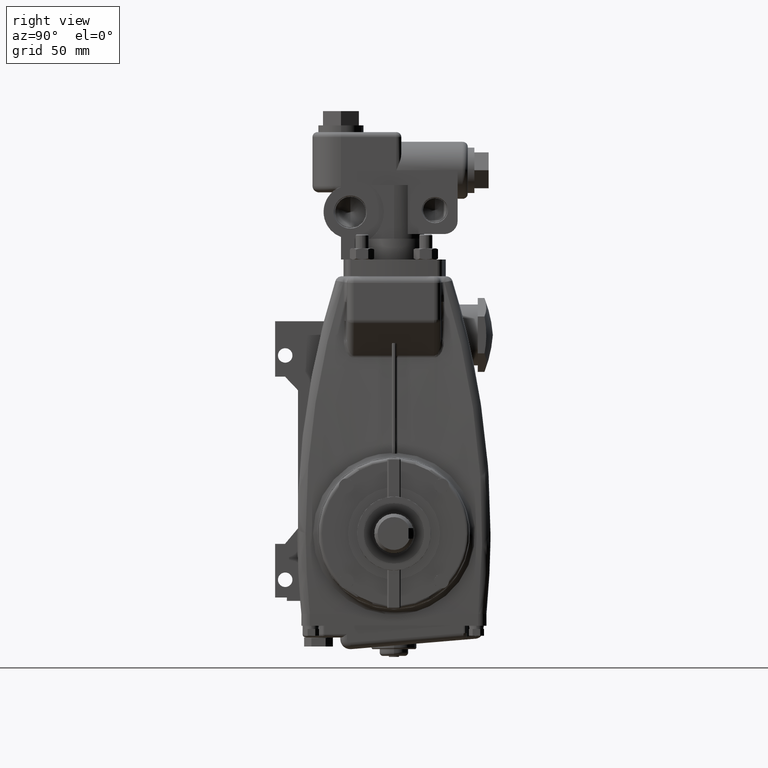
[diagram: clean part render]
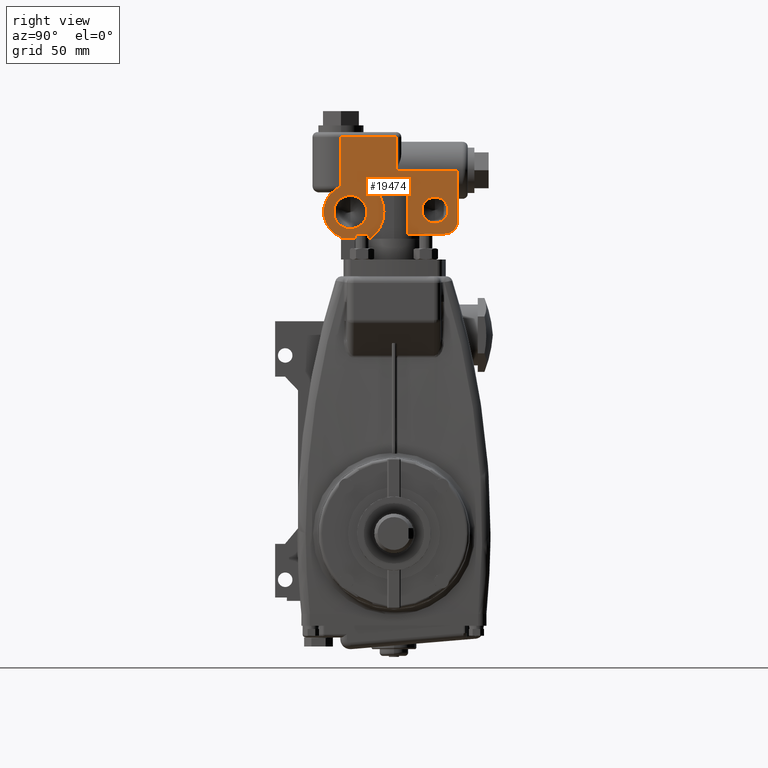
[diagram: same view with one face highlighted and labeled with its STEP entity id]
A machine part, right view. The second image highlights one B-rep face of the part: STEP entity #19474.
In plain terms, the highlighted planar face has unit normal (1, 0, 0).
Its self-contained STEP definition (entity closure, byte-faithful):
#2879 = DIRECTION ( 'NONE',  ( -0.0000000000000000000, -1.000000000000000000, -0.0000000000000000000 ) ) ;
#2880 = VECTOR ( 'NONE', #2879, 39.37007874015748100 ) ;
#2881 = CARTESIAN_POINT ( 'NONE',  ( 2.599999999999999600, 1.899999999999999900, 3.160000000000000100 ) ) ;
#2888 = LINE ( 'NONE', #2881, #2880 ) ;
#3373 = CARTESIAN_POINT ( 'NONE',  ( 2.599999999999999200, -0.7034237800470094500, 1.119999999999999900 ) ) ;
#3650 = CARTESIAN_POINT ( 'NONE',  ( 2.599999999999999600, -1.580000000000000700, 1.170899632892894200 ) ) ;
#3651 = CARTESIAN_POINT ( 'NONE',  ( 2.599999999999999600, -1.580000000000000300, 2.700000000000000200 ) ) ;
#3652 = DIRECTION ( 'NONE',  ( 0.0000000000000000000, 0.0000000000000000000, -1.000000000000000000 ) ) ;
#3653 = VECTOR ( 'NONE', #3652, 39.37007874015748100 ) ;
#3654 = CARTESIAN_POINT ( 'NONE',  ( 2.599999999999999600, -1.580000000000000100, 1.119999999999999900 ) ) ;
#3655 = LINE ( 'NONE', #3654, #3653 ) ;
#3668 = CARTESIAN_POINT ( 'NONE',  ( 2.599999999999999600, -1.299199999999999900, 1.919999999999999700 ) ) ;
#3669 = CIRCLE ( 'NONE', #3699, 0.8000000000000003800 ) ;
#3697 = DIRECTION ( 'NONE',  ( -6.829619984160655100E-016, 1.000000000000000000, 0.0000000000000000000 ) ) ;
#3698 = DIRECTION ( 'NONE',  ( 1.000000000000000000, 4.751039988981326400E-016, 0.0000000000000000000 ) ) ;
#3699 = AXIS2_PLACEMENT_3D ( 'NONE', #3668, #3698, #3697 ) ;
#3703 = CARTESIAN_POINT ( 'NONE',  ( 2.599999999999999600, -1.580000000000000100, 2.669100367107105000 ) ) ;
#3800 = CARTESIAN_POINT ( 'NONE',  ( 2.599999999999999600, -1.580000000000000100, 1.119999999999999400 ) ) ;
#3801 = DIRECTION ( 'NONE',  ( 0.0000000000000000000, 0.0000000000000000000, -1.000000000000000000 ) ) ;
#3802 = VECTOR ( 'NONE', #3801, 39.37007874015748100 ) ;
#3803 = CARTESIAN_POINT ( 'NONE',  ( 2.599999999999999600, -1.580000000000000100, 1.119999999999999900 ) ) ;
#3804 = LINE ( 'NONE', #3803, #3802 ) ;
#3870 = DIRECTION ( 'NONE',  ( -4.751039988981326400E-016, 1.000000000000000000, 0.0000000000000000000 ) ) ;
#3871 = VECTOR ( 'NONE', #3870, 39.37007874015748100 ) ;
#3872 = CARTESIAN_POINT ( 'NONE',  ( 2.599999999999998300, 1.612384196260536800E-015, 1.119999999999999900 ) ) ;
#3873 = LINE ( 'NONE', #3872, #3871 ) ;
#4648 = DIRECTION ( 'NONE',  ( -0.0000000000000000000, -0.0000000000000000000, -1.000000000000000000 ) ) ;
#4649 = VECTOR ( 'NONE', #4648, 39.37007874015748100 ) ;
#4650 = CARTESIAN_POINT ( 'NONE',  ( 2.599999999999999600, 0.4123105625617684000, 1.220000000000000000 ) ) ;
#4651 = LINE ( 'NONE', #4650, #4649 ) ;
#4689 = DIRECTION ( 'NONE',  ( 0.0000000000000000000, 1.000000000000000000, 0.0000000000000000000 ) ) ;
#4690 = VECTOR ( 'NONE', #4689, 39.37007874015748100 ) ;
#4691 = CARTESIAN_POINT ( 'NONE',  ( 2.599999999999999600, 4.429756179473813100E-016, 2.719999999999999800 ) ) ;
#4692 = LINE ( 'NONE', #4691, #4690 ) ;
#4693 = CARTESIAN_POINT ( 'NONE',  ( 2.599999999999999600, 0.4123105625617684000, 2.719999999999999800 ) ) ;
#4891 = CARTESIAN_POINT ( 'NONE',  ( 2.599999999999999200, 0.4123105625617695100, 1.260000000000000200 ) ) ;
#5938 = DIRECTION ( 'NONE',  ( -0.0000000000000000000, -0.0000000000000000000, -1.000000000000000000 ) ) ;
#5939 = VECTOR ( 'NONE', #5938, 39.37007874015748100 ) ;
#5940 = CARTESIAN_POINT ( 'NONE',  ( 2.599999999999999600, -0.7034237800470089000, 1.119999999999999900 ) ) ;
#5941 = LINE ( 'NONE', #5940, #5939 ) ;
#5946 = CARTESIAN_POINT ( 'NONE',  ( 2.599999999999999200, -0.7034237800470089000, 1.116849518621494000 ) ) ;
#6014 = VERTEX_POINT ( 'NONE', #23345 ) ;
#6016 = VERTEX_POINT ( 'NONE', #23348 ) ;
#7454 = DIRECTION ( 'NONE',  ( 0.0000000000000000000, 0.0000000000000000000, 1.000000000000000000 ) ) ;
#7455 = VECTOR ( 'NONE', #7454, 39.37007874015748100 ) ;
#7457 = CARTESIAN_POINT ( 'NONE',  ( 2.599999999999999600, -1.580000000000000300, 2.700000000000000200 ) ) ;
#7459 = LINE ( 'NONE', #7457, #7455 ) ;
#7582 = CARTESIAN_POINT ( 'NONE',  ( 2.599999999999999600, -1.580000000000000300, 4.150000000000000400 ) ) ;
#8287 = AXIS2_PLACEMENT_3D ( 'NONE', #8433, #8431, #8429 ) ;
#8293 = PLANE ( 'NONE',  #8287 ) ;
#8347 = FACE_OUTER_BOUND ( 'NONE', #19490, .T. ) ;
#8349 = FACE_BOUND ( 'NONE', #19483, .T. ) ;
#8350 = FACE_BOUND ( 'NONE', #19477, .T. ) ;
#8406 = DIRECTION ( 'NONE',  ( 0.0000000000000000000, 0.0000000000000000000, -1.000000000000000000 ) ) ;
#8408 = DIRECTION ( 'NONE',  ( 1.000000000000000000, -0.0000000000000000000, -0.0000000000000000000 ) ) ;
#8410 = CARTESIAN_POINT ( 'NONE',  ( 2.600000000000000100, -1.299199999999999900, 1.914600000000007000 ) ) ;
#8412 = AXIS2_PLACEMENT_3D ( 'NONE', #8410, #8408, #8406 ) ;
#8413 = CIRCLE ( 'NONE', #8412, 0.4944349999999999600 ) ;
#8418 = DIRECTION ( 'NONE',  ( 0.0000000000000000000, 0.0000000000000000000, -1.000000000000000000 ) ) ;
#8420 = DIRECTION ( 'NONE',  ( 1.000000000000000000, -0.0000000000000000000, -0.0000000000000000000 ) ) ;
#8421 = CARTESIAN_POINT ( 'NONE',  ( 2.599999999999999600, 1.220499999999999900, 1.973700000000005300 ) ) ;
#8422 = AXIS2_PLACEMENT_3D ( 'NONE', #8421, #8420, #8418 ) ;
#8424 = CIRCLE ( 'NONE', #8422, 0.3892150000000000900 ) ;
#8429 = DIRECTION ( 'NONE',  ( 0.0000000000000000000, 0.0000000000000000000, -1.000000000000000000 ) ) ;
#8431 = DIRECTION ( 'NONE',  ( 1.000000000000000000, 0.0000000000000000000, 0.0000000000000000000 ) ) ;
#8433 = CARTESIAN_POINT ( 'NONE',  ( 2.599999999999999600, -1.580000000000000300, 2.700000000000000200 ) ) ;
#8514 = DIRECTION ( 'NONE',  ( 0.0000000000000000000, 0.0000000000000000000, 1.000000000000000000 ) ) ;
#8515 = VECTOR ( 'NONE', #8514, 39.37007874015748100 ) ;
#8517 = CARTESIAN_POINT ( 'NONE',  ( 2.599999999999999600, 0.06999999999999952100, 2.700000000000000200 ) ) ;
#8518 = LINE ( 'NONE', #8517, #8515 ) ;
#8647 = DIRECTION ( 'NONE',  ( 0.0000000000000000000, -1.000000000000000000, -0.0000000000000000000 ) ) ;
#8648 = VECTOR ( 'NONE', #8647, 39.37007874015748100 ) ;
#8650 = CARTESIAN_POINT ( 'NONE',  ( 2.599999999999999600, -1.580000000000000300, 4.150000000000000400 ) ) ;
#8653 = LINE ( 'NONE', #8650, #8648 ) ;
#8657 = DIRECTION ( 'NONE',  ( 0.0000000000000000000, 0.0000000000000000000, -1.000000000000000000 ) ) ;
#8658 = VECTOR ( 'NONE', #8657, 39.37007874015748100 ) ;
#8660 = CARTESIAN_POINT ( 'NONE',  ( 2.599999999999999600, 1.899999999999999900, 3.160000000000000100 ) ) ;
#8661 = LINE ( 'NONE', #8660, #8658 ) ;
#8667 = CARTESIAN_POINT ( 'NONE',  ( 2.599999999999999600, 1.899999999999999900, 1.660000000000000400 ) ) ;
#8669 = DIRECTION ( 'NONE',  ( 0.0000000000000000000, 0.0000000000000000000, -1.000000000000000000 ) ) ;
#8670 = DIRECTION ( 'NONE',  ( 1.000000000000000000, 0.0000000000000000000, 0.0000000000000000000 ) ) ;
#8672 = CARTESIAN_POINT ( 'NONE',  ( 2.599999999999999200, 1.499999999999999800, 1.660000000000000400 ) ) ;
#8673 = AXIS2_PLACEMENT_3D ( 'NONE', #8672, #8670, #8669 ) ;
#8675 = CIRCLE ( 'NONE', #8673, 0.4000000000000000800 ) ;
#8680 = CARTESIAN_POINT ( 'NONE',  ( 2.599999999999999200, 1.499999999999999800, 1.260000000000000200 ) ) ;
#8682 = DIRECTION ( 'NONE',  ( 0.0000000000000000000, 1.000000000000000000, 0.0000000000000000000 ) ) ;
#8683 = VECTOR ( 'NONE', #8682, 39.37007874015748100 ) ;
#8685 = CARTESIAN_POINT ( 'NONE',  ( 2.599999999999999200, 0.1000000000000000200, 1.260000000000000200 ) ) ;
#8687 = LINE ( 'NONE', #8685, #8683 ) ;
#8770 = DIRECTION ( 'NONE',  ( -5.463695987328526400E-016, 1.000000000000000000, 0.0000000000000000000 ) ) ;
#8771 = DIRECTION ( 'NONE',  ( 1.000000000000000000, 4.751039988981326400E-016, 0.0000000000000000000 ) ) ;
#8773 = CARTESIAN_POINT ( 'NONE',  ( 2.599999999999999600, -1.299199999999999700, 1.919999999999999700 ) ) ;
#8774 = AXIS2_PLACEMENT_3D ( 'NONE', #8773, #8771, #8770 ) ;
#8776 = CIRCLE ( 'NONE', #8774, 1.000000000000000000 ) ;
#8783 = CARTESIAN_POINT ( 'NONE',  ( 2.599999999999999600, 0.06999999999999952100, 4.150000000000000400 ) ) ;
#17073 = EDGE_CURVE ( 'NONE', #6016, #6014, #2888, .T. ) ;
#17352 = VERTEX_POINT ( 'NONE', #3373 ) ;
#17495 = EDGE_CURVE ( 'NONE', #17497, #17527, #3655, .T. ) ;
#17497 = VERTEX_POINT ( 'NONE', #3651 ) ;
#17500 = VERTEX_POINT ( 'NONE', #3650 ) ;
#17527 = VERTEX_POINT ( 'NONE', #3703 ) ;
#17532 = EDGE_CURVE ( 'NONE', #17527, #17500, #3669, .T. ) ;
#17583 = EDGE_CURVE ( 'NONE', #17500, #17586, #3804, .T. ) ;
#17586 = VERTEX_POINT ( 'NONE', #3800 ) ;
#17607 = EDGE_CURVE ( 'NONE', #17586, #17352, #3873, .T. ) ;
#18244 = EDGE_CURVE ( 'NONE', #18292, #18388, #4651, .T. ) ;
#18292 = VERTEX_POINT ( 'NONE', #4693 ) ;
#18295 = EDGE_CURVE ( 'NONE', #22846, #18292, #4692, .T. ) ;
#18388 = VERTEX_POINT ( 'NONE', #4891 ) ;
#18968 = VERTEX_POINT ( 'NONE', #5946 ) ;
#18970 = EDGE_CURVE ( 'NONE', #17352, #18968, #5941, .T. ) ;
#19303 = EDGE_CURVE ( 'NONE', #17497, #19304, #7459, .T. ) ;
#19304 = VERTEX_POINT ( 'NONE', #7582 ) ;
#19474 = ADVANCED_FACE ( 'NONE', ( #8350, #8349, #8347 ), #8293, .T. ) ;
#19477 = EDGE_LOOP ( 'NONE', ( #19478, #19480 ) ) ;
#19478 = ORIENTED_EDGE ( 'NONE', *, *, #19479, .F. ) ;
#19479 = EDGE_CURVE ( 'NONE', #22525, #22526, #8424, .T. ) ;
#19480 = ORIENTED_EDGE ( 'NONE', *, *, #22522, .F. ) ;
#19483 = EDGE_LOOP ( 'NONE', ( #19485, #19489 ) ) ;
#19485 = ORIENTED_EDGE ( 'NONE', *, *, #19488, .F. ) ;
#19488 = EDGE_CURVE ( 'NONE', #22760, #22672, #8413, .T. ) ;
#19489 = ORIENTED_EDGE ( 'NONE', *, *, #22756, .F. ) ;
#19490 = EDGE_LOOP ( 'NONE', ( #19491, #19606, #19608, #19609, #19610, #19611, #19612, #19613, #19616, #19582, #19583, #19584, #19588, #19595, #19597, #19598 ) ) ;
#19491 = ORIENTED_EDGE ( 'NONE', *, *, #19600, .T. ) ;
#19558 = EDGE_CURVE ( 'NONE', #6014, #19603, #8518, .T. ) ;
#19582 = ORIENTED_EDGE ( 'NONE', *, *, #18295, .T. ) ;
#19583 = ORIENTED_EDGE ( 'NONE', *, *, #18244, .T. ) ;
#19584 = ORIENTED_EDGE ( 'NONE', *, *, #19585, .T. ) ;
#19585 = EDGE_CURVE ( 'NONE', #18388, #19587, #8687, .T. ) ;
#19587 = VERTEX_POINT ( 'NONE', #8680 ) ;
#19588 = ORIENTED_EDGE ( 'NONE', *, *, #19591, .T. ) ;
#19591 = EDGE_CURVE ( 'NONE', #19587, #19593, #8675, .T. ) ;
#19593 = VERTEX_POINT ( 'NONE', #8667 ) ;
#19595 = ORIENTED_EDGE ( 'NONE', *, *, #19596, .F. ) ;
#19596 = EDGE_CURVE ( 'NONE', #6016, #19593, #8661, .T. ) ;
#19597 = ORIENTED_EDGE ( 'NONE', *, *, #17073, .T. ) ;
#19598 = ORIENTED_EDGE ( 'NONE', *, *, #19558, .T. ) ;
#19600 = EDGE_CURVE ( 'NONE', #19603, #19304, #8653, .T. ) ;
#19603 = VERTEX_POINT ( 'NONE', #8783 ) ;
#19606 = ORIENTED_EDGE ( 'NONE', *, *, #19303, .F. ) ;
#19608 = ORIENTED_EDGE ( 'NONE', *, *, #17495, .T. ) ;
#19609 = ORIENTED_EDGE ( 'NONE', *, *, #17532, .T. ) ;
#19610 = ORIENTED_EDGE ( 'NONE', *, *, #17583, .T. ) ;
#19611 = ORIENTED_EDGE ( 'NONE', *, *, #17607, .T. ) ;
#19612 = ORIENTED_EDGE ( 'NONE', *, *, #18970, .T. ) ;
#19613 = ORIENTED_EDGE ( 'NONE', *, *, #19615, .T. ) ;
#19615 = EDGE_CURVE ( 'NONE', #18968, #22840, #8776, .T. ) ;
#19616 = ORIENTED_EDGE ( 'NONE', *, *, #22843, .T. ) ;
#22522 = EDGE_CURVE ( 'NONE', #22526, #22525, #23024, .T. ) ;
#22525 = VERTEX_POINT ( 'NONE', #23018 ) ;
#22526 = VERTEX_POINT ( 'NONE', #23016 ) ;
#22672 = VERTEX_POINT ( 'NONE', #23588 ) ;
#22756 = EDGE_CURVE ( 'NONE', #22672, #22760, #24017, .T. ) ;
#22760 = VERTEX_POINT ( 'NONE', #24003 ) ;
#22840 = VERTEX_POINT ( 'NONE', #24310 ) ;
#22843 = EDGE_CURVE ( 'NONE', #22840, #22846, #24300, .T. ) ;
#22846 = VERTEX_POINT ( 'NONE', #24290 ) ;
#23016 = CARTESIAN_POINT ( 'NONE',  ( 2.599999999999999600, 1.220499999999999900, 2.362915000000005400 ) ) ;
#23018 = CARTESIAN_POINT ( 'NONE',  ( 2.599999999999999600, 1.220499999999999900, 1.584485000000005300 ) ) ;
#23019 = DIRECTION ( 'NONE',  ( 0.0000000000000000000, 0.0000000000000000000, -1.000000000000000000 ) ) ;
#23021 = DIRECTION ( 'NONE',  ( 1.000000000000000000, -0.0000000000000000000, -0.0000000000000000000 ) ) ;
#23022 = CARTESIAN_POINT ( 'NONE',  ( 2.599999999999999600, 1.220499999999999900, 1.973700000000005300 ) ) ;
#23023 = AXIS2_PLACEMENT_3D ( 'NONE', #23022, #23021, #23019 ) ;
#23024 = CIRCLE ( 'NONE', #23023, 0.3892150000000000900 ) ;
#23345 = CARTESIAN_POINT ( 'NONE',  ( 2.599999999999999600, 0.07000000000000007600, 3.160000000000000100 ) ) ;
#23348 = CARTESIAN_POINT ( 'NONE',  ( 2.599999999999999600, 1.899999999999999900, 3.160000000000000100 ) ) ;
#23588 = CARTESIAN_POINT ( 'NONE',  ( 2.600000000000000100, -1.299199999999999900, 2.409035000000006900 ) ) ;
#24003 = CARTESIAN_POINT ( 'NONE',  ( 2.600000000000000100, -1.299199999999999900, 1.420165000000007000 ) ) ;
#24012 = DIRECTION ( 'NONE',  ( 0.0000000000000000000, 0.0000000000000000000, -1.000000000000000000 ) ) ;
#24014 = DIRECTION ( 'NONE',  ( 1.000000000000000000, -0.0000000000000000000, -0.0000000000000000000 ) ) ;
#24015 = CARTESIAN_POINT ( 'NONE',  ( 2.600000000000000100, -1.299199999999999900, 1.914600000000007000 ) ) ;
#24016 = AXIS2_PLACEMENT_3D ( 'NONE', #24015, #24014, #24012 ) ;
#24017 = CIRCLE ( 'NONE', #24016, 0.4944349999999999600 ) ;
#24290 = CARTESIAN_POINT ( 'NONE',  ( 2.599999999999999200, -0.6991999999999999300, 2.719999999999999800 ) ) ;
#24292 = DIRECTION ( 'NONE',  ( -5.463695987328526400E-016, 1.000000000000000000, 0.0000000000000000000 ) ) ;
#24294 = DIRECTION ( 'NONE',  ( 1.000000000000000000, 4.751039988981326400E-016, 0.0000000000000000000 ) ) ;
#24296 = CARTESIAN_POINT ( 'NONE',  ( 2.599999999999999600, -1.299199999999999700, 1.919999999999999700 ) ) ;
#24298 = AXIS2_PLACEMENT_3D ( 'NONE', #24296, #24294, #24292 ) ;
#24300 = CIRCLE ( 'NONE', #24298, 1.000000000000000000 ) ;
#24310 = CARTESIAN_POINT ( 'NONE',  ( 2.599999999999999200, -0.2991999999999996300, 1.919999999999999700 ) ) ;